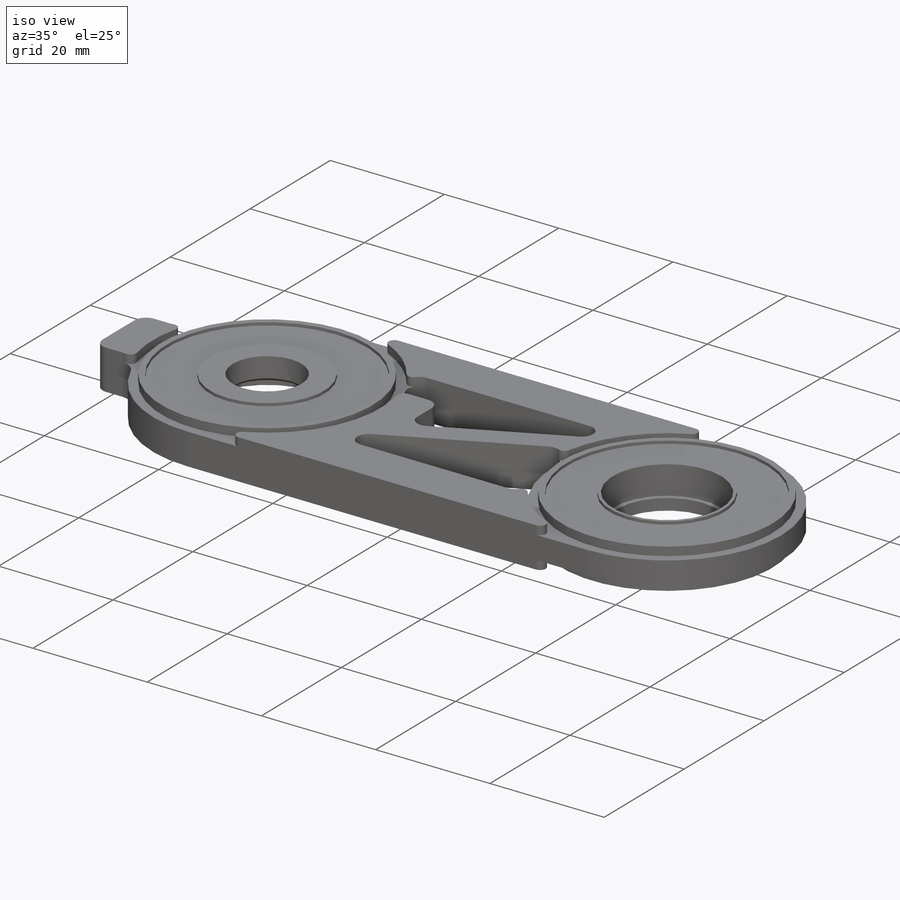
[diagram: iso view]
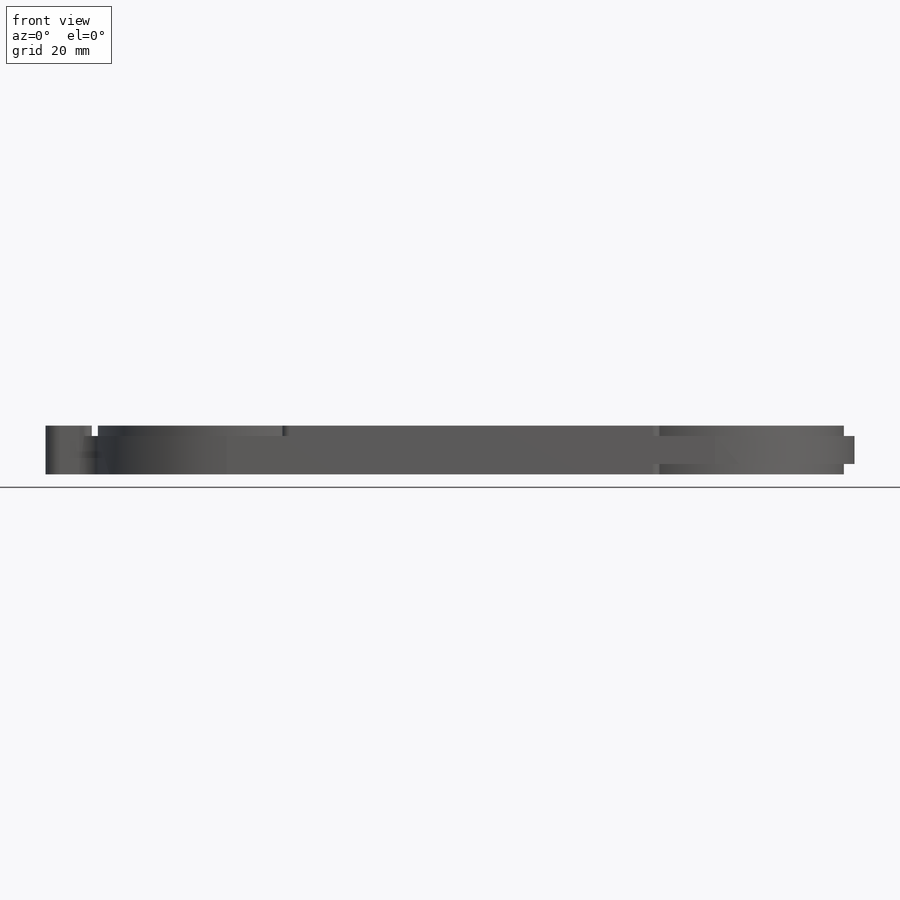
[diagram: front view]
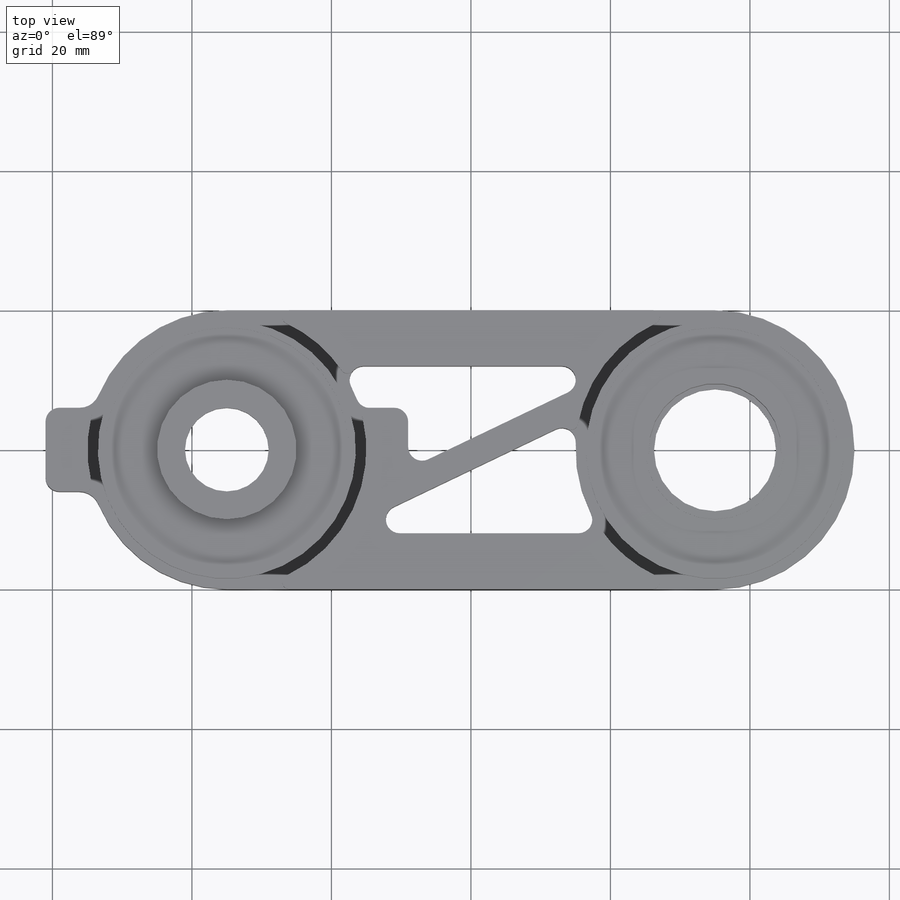
[diagram: top view]
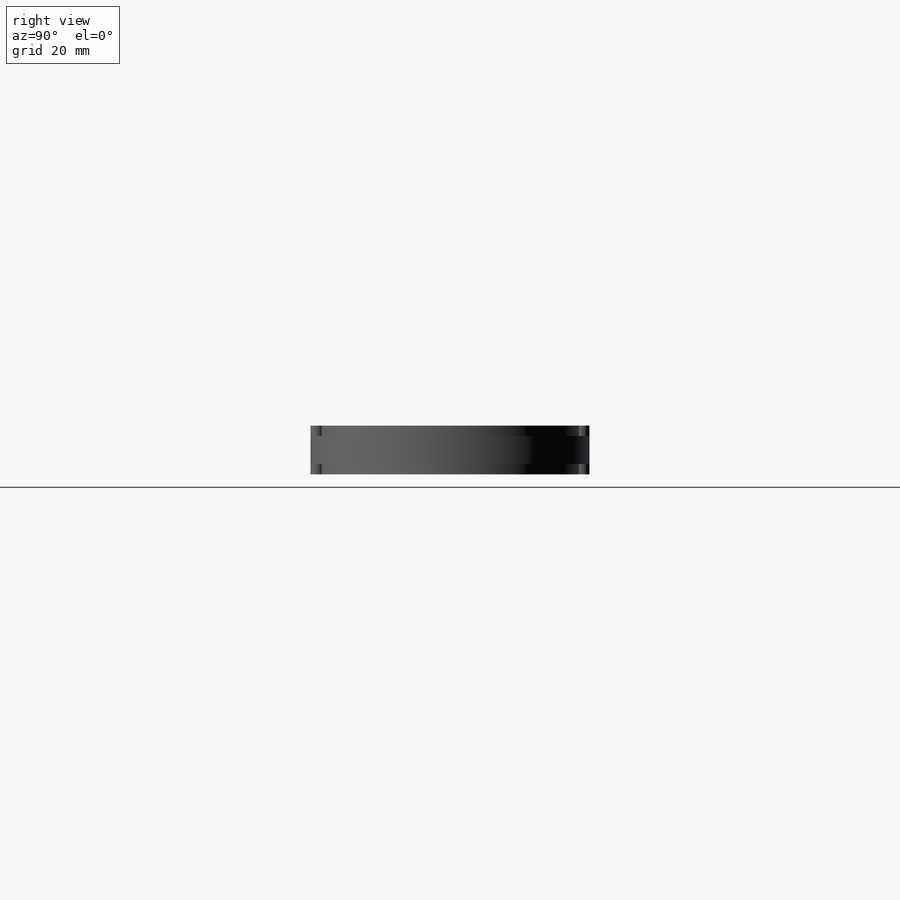
[diagram: right view]
SOLIDWORKS PART (.sldprt)
format: sldprt  version: not decoded by parser v0  size: 412,160 bytes
history: native  units: mm
features: sketch x8, cut_extrude x6, mirror x3, fillet x3, material x1, extrude x1, cut_revolve x1, chamfer x1 (+16 scaffold rows collapsed)
feature tree (40):
  scaffold x16  (default folders/planes/origin — collapsed)
  material  "Plain Carbon Steel"
  sketch  "Sketch1"  dims[D2=40.0mm D5=2.0mm D1=70.0mm D3=26.0mm D4=12.0mm]
  extrude  "Boss-Extrude1"  Depth=7mm
  sketch  "Sketch2"  dims[D5=2.0mm D1=52.0mm D2=8.0mm D3=8.0mm D4=4.0mm]
  cut_extrude  "Cut-Extrude1"  [1 undecoded]
  sketch  "Sketch3"  dims[D1=19.0mm]
  cut_extrude  "Cut-Extrude2"  Depth=5mm
  sketch  "Sketch4"  dims[D1=17.5mm]
  cut_extrude  "Cut-Extrude3"  [1 undecoded]
  sketch  "Sketch5"  dims[D1=35.0mm D2=20.0mm]
  cut_extrude  "Cut-Extrude4"  Depth=0.5mm
  mirror  "Mirror1"
  sketch  "Sketch6"  dims[D1=1.5mm D2=1.5mm]
  cut_revolve  "Cut-Revolve1"  Angle=360deg
  fillet  "Fillet1"  Radius=1mm
  mirror  "Mirror2"
  sketch  "Sketch7"  dims[D1=12.0mm]
  cut_extrude  "Cut-Extrude5"  [1 undecoded]
  fillet  "Fillet2"  Radius=3mm
  mirror  "Mirror3"
  fillet  "Fillet3"  Radius=1mm
  sketch  "Sketch8"  dims[D1=22.5mm]
  cut_extrude  "Cut-Extrude6"  Depth=3mm
  chamfer  "Chamfer1"  Distance=0.5mm Angle=45deg
decode coverage: 17 of 23 modeling features carry decoded parameters
note: 3 parameter values undecoded
summary: no parameter record found for 3 features
note: suppression state not decoded; provenance and decode notes live in map.json
